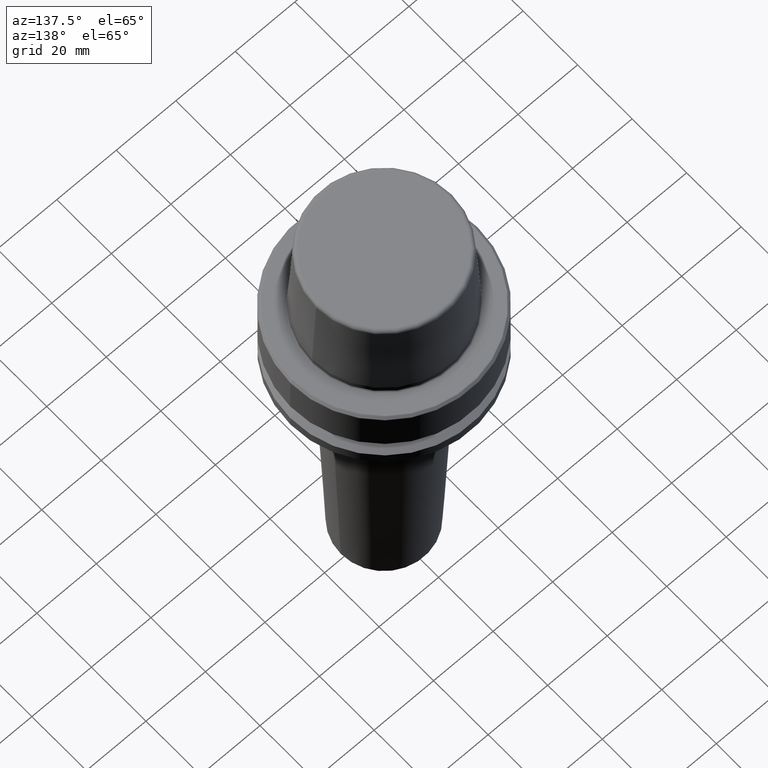
[diagram: clean part render]
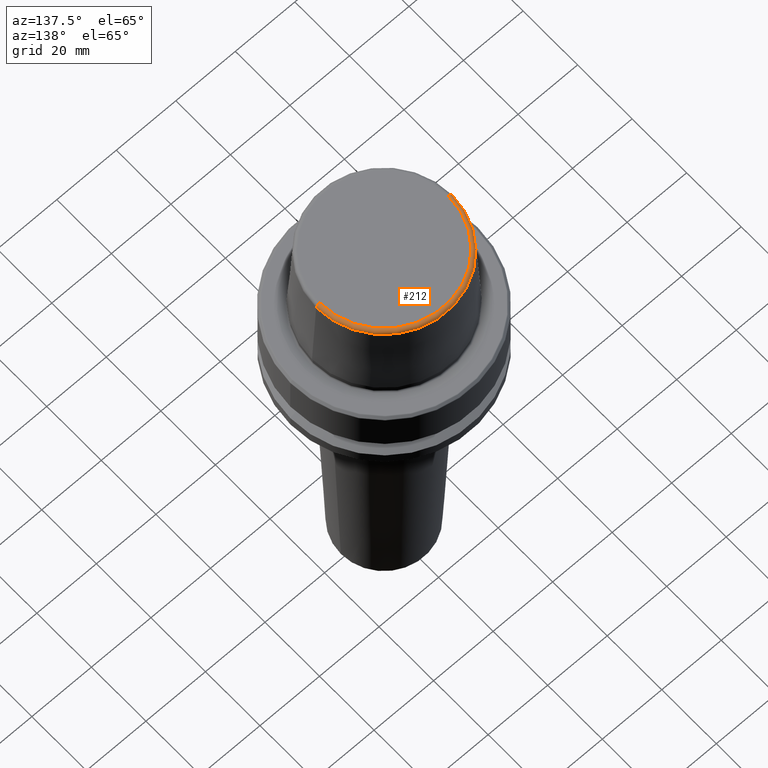
[diagram: same view with one face highlighted and labeled with its STEP entity id]
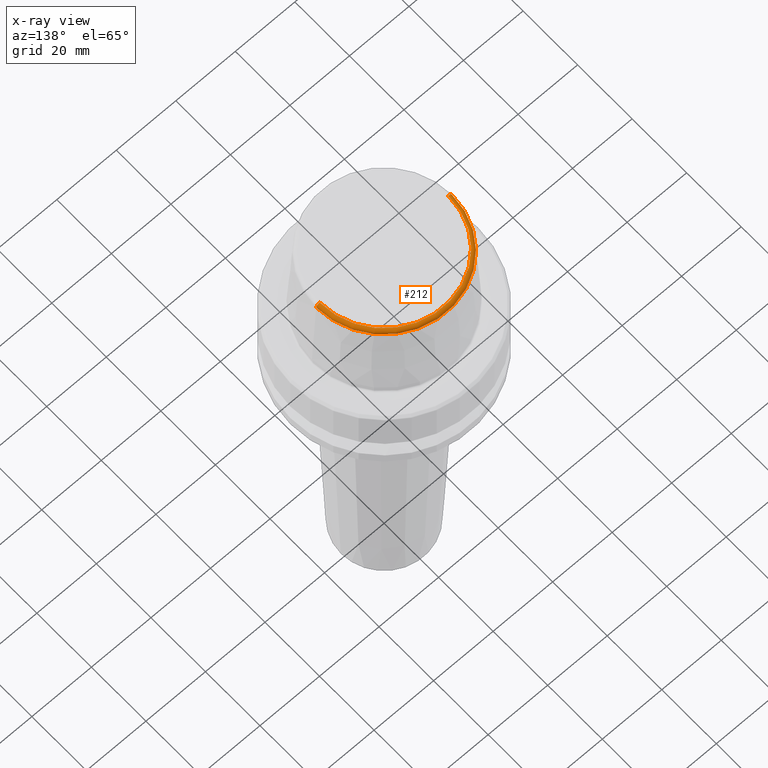
[diagram: x-ray of the same camera — body ghosted, the highlighted face saturated]
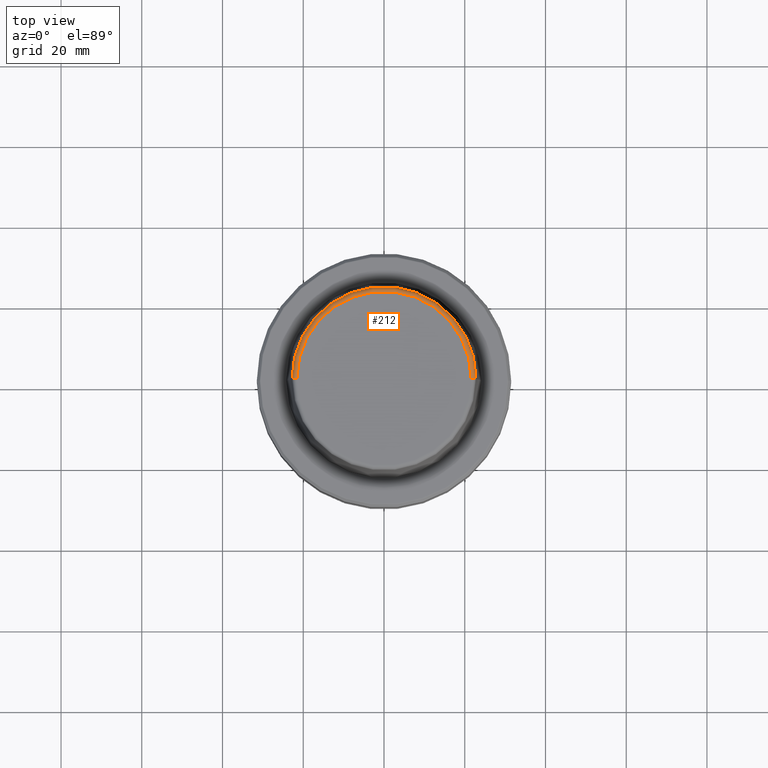
[diagram: same view with one face highlighted and labeled with its STEP entity id]
A machine part, auxiliary view. The second image highlights one B-rep face of the part: STEP entity #212.
The next image is the same camera in x-ray: the body ghosted, the highlighted face saturated — about 0% of this face is hidden behind the body in this view.
A second angle (top view) of the same face is appended — the face is thin or edge-on in the first view.
In plain terms, the highlighted toroidal blend (fillet) surface has major radius 21.5811 mm and minor (blend) radius 1.2 mm.
Its self-contained STEP definition (entity closure, byte-faithful):
#56 = DIRECTION ( 'NONE',  ( 1.000000000000000000, 0.0000000000000000000, 0.0000000000000000000 ) ) ;
#96 = DIRECTION ( 'NONE',  ( 1.000000000000000000, 0.0000000000000000000, 0.0000000000000000000 ) ) ;
#156 = CARTESIAN_POINT ( 'NONE',  ( 22.77957961851797100, 2.876386432489616700E-015, 30.76004333261571900 ) ) ;
#165 = ORIENTED_EDGE ( 'NONE', *, *, #896, .T. ) ;
#212 = ADVANCED_FACE ( 'NONE', ( #585 ), #865, .T. ) ;
#229 = CIRCLE ( 'NONE', #330, 1.200000000000003100 ) ;
#232 = AXIS2_PLACEMENT_3D ( 'NONE', #1225, #640, #56 ) ;
#250 = DIRECTION ( 'NONE',  ( -0.0000000000000000000, -0.0000000000000000000, 1.000000000000000000 ) ) ;
#274 = DIRECTION ( 'NONE',  ( 1.224646799147353200E-016, 1.000000000000000000, 0.0000000000000000000 ) ) ;
#277 = CARTESIAN_POINT ( 'NONE',  ( -22.77957961851797100, 0.0000000000000000000, 30.76004333261571900 ) ) ;
#300 = EDGE_CURVE ( 'NONE', #502, #396, #1128, .T. ) ;
#308 = EDGE_LOOP ( 'NONE', ( #602, #165, #1126, #441 ) ) ;
#319 = EDGE_CURVE ( 'NONE', #341, #384, #842, .T. ) ;
#330 = AXIS2_PLACEMENT_3D ( 'NONE', #503, #1165, #583 ) ;
#341 = VERTEX_POINT ( 'NONE', #156 ) ;
#384 = VERTEX_POINT ( 'NONE', #277 ) ;
#396 = VERTEX_POINT ( 'NONE', #1117 ) ;
#441 = ORIENTED_EDGE ( 'NONE', *, *, #581, .F. ) ;
#502 = VERTEX_POINT ( 'NONE', #1058 ) ;
#503 = CARTESIAN_POINT ( 'NONE',  ( 21.58108272732117100, 0.0000000000000000000, 30.69999999999999200 ) ) ;
#580 = CARTESIAN_POINT ( 'NONE',  ( 0.0000000000000000000, 0.0000000000000000000, 30.69999999999999200 ) ) ;
#581 = EDGE_CURVE ( 'NONE', #341, #502, #229, .T. ) ;
#583 = DIRECTION ( 'NONE',  ( 0.0000000000000000000, 0.0000000000000000000, -1.000000000000000000 ) ) ;
#585 = FACE_OUTER_BOUND ( 'NONE', #308, .T. ) ;
#602 = ORIENTED_EDGE ( 'NONE', *, *, #319, .T. ) ;
#640 = DIRECTION ( 'NONE',  ( -0.0000000000000000000, -0.0000000000000000000, 1.000000000000000000 ) ) ;
#677 = DIRECTION ( 'NONE',  ( -0.0000000000000000000, -0.0000000000000000000, 1.000000000000000000 ) ) ;
#831 = CARTESIAN_POINT ( 'NONE',  ( 0.0000000000000000000, 0.0000000000000000000, 31.89999999999999900 ) ) ;
#842 = CIRCLE ( 'NONE', #232, 22.77957961851797100 ) ;
#846 = AXIS2_PLACEMENT_3D ( 'NONE', #580, #677, #96 ) ;
#848 = CARTESIAN_POINT ( 'NONE',  ( -21.58108272732117100, 2.642920388414810300E-015, 30.69999999999999200 ) ) ;
#865 = TOROIDAL_SURFACE ( 'NONE', #846, 21.58108272732117100, 1.200000000000003100 ) ;
#896 = EDGE_CURVE ( 'NONE', #384, #396, #957, .T. ) ;
#901 = AXIS2_PLACEMENT_3D ( 'NONE', #831, #250, #927 ) ;
#927 = DIRECTION ( 'NONE',  ( 1.000000000000000000, 0.0000000000000000000, 0.0000000000000000000 ) ) ;
#954 = DIRECTION ( 'NONE',  ( -1.000000000000000000, 1.224646799147353200E-016, 0.0000000000000000000 ) ) ;
#957 = CIRCLE ( 'NONE', #1155, 1.200000000000003100 ) ;
#1058 = CARTESIAN_POINT ( 'NONE',  ( 21.58108272732117100, 0.0000000000000000000, 31.89999999999999900 ) ) ;
#1117 = CARTESIAN_POINT ( 'NONE',  ( -21.58108272732117100, 2.716307157494421400E-015, 31.89999999999999900 ) ) ;
#1126 = ORIENTED_EDGE ( 'NONE', *, *, #300, .F. ) ;
#1128 = CIRCLE ( 'NONE', #901, 21.58108272732117100 ) ;
#1155 = AXIS2_PLACEMENT_3D ( 'NONE', #848, #274, #954 ) ;
#1165 = DIRECTION ( 'NONE',  ( 0.0000000000000000000, -1.000000000000000000, 0.0000000000000000000 ) ) ;
#1225 = CARTESIAN_POINT ( 'NONE',  ( 0.0000000000000000000, 0.0000000000000000000, 30.76004333261571900 ) ) ;